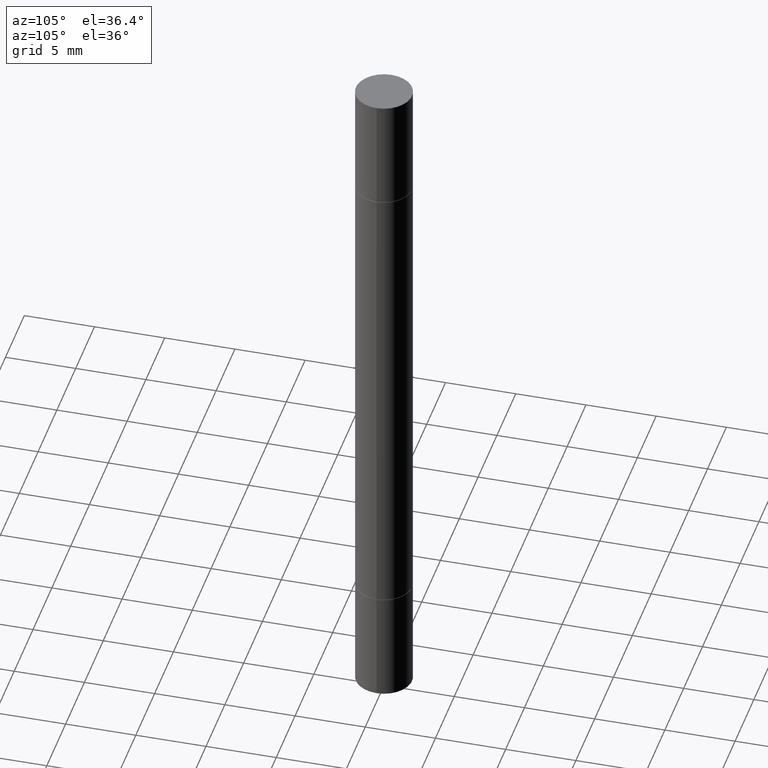
[diagram: clean part render]
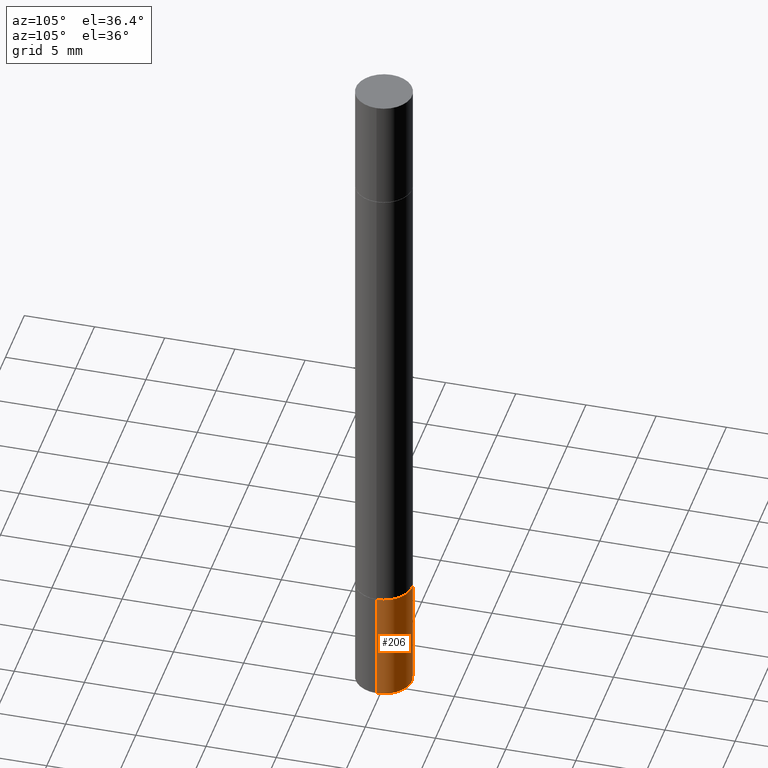
[diagram: same view with one face highlighted and labeled with its STEP entity id]
A machine part, auxiliary view. The second image highlights one B-rep face of the part: STEP entity #206.
In plain terms, the highlighted cylindrical surface (edge-blend (fillet) strip) has radius 2.0002 mm, axis along (-0, 0, 1).
Its self-contained STEP definition (entity closure, byte-faithful):
#7 = EDGE_LOOP ( 'NONE', ( #641, #482, #228, #589 ) ) ;
#40 = EDGE_CURVE ( 'NONE', #195, #324, #334, .T. ) ;
#74 = FACE_OUTER_BOUND ( 'NONE', #7, .T. ) ;
#107 = VERTEX_POINT ( 'NONE', #665 ) ;
#136 = LINE ( 'NONE', #510, #160 ) ;
#160 = VECTOR ( 'NONE', #287, 39.37007874015748143 ) ;
#195 = VERTEX_POINT ( 'NONE', #395 ) ;
#206 = ADVANCED_FACE ( 'NONE', ( #74 ), #494, .T. ) ;
#216 = DIRECTION ( 'NONE',  ( -2.445468806185136877E-29, 3.491481338843145188E-15, 1.000000000000000000 ) ) ;
#228 = ORIENTED_EDGE ( 'NONE', *, *, #40, .F. ) ;
#259 = CARTESIAN_POINT ( 'NONE',  ( -0.07875000000000000056, -5.763520300233858771E-15, -1.653499999999999970 ) ) ;
#287 = DIRECTION ( 'NONE',  ( -2.445468806185136877E-29, 3.491481338843145188E-15, 1.000000000000000000 ) ) ;
#288 = CARTESIAN_POINT ( 'NONE',  ( 0.000000000000000000, 0.000000000000000000, 0.000000000000000000 ) ) ;
#324 = VERTEX_POINT ( 'NONE', #259 ) ;
#331 = CARTESIAN_POINT ( 'NONE',  ( -0.07875000000000000056, -5.763520300233858771E-15, -1.968500000000000139 ) ) ;
#334 = CIRCLE ( 'NONE', #499, 0.07875000000000000056 ) ;
#368 = VECTOR ( 'NONE', #216, 39.37007874015748143 ) ;
#380 = CIRCLE ( 'NONE', #475, 0.07875000000000000056 ) ;
#386 = DIRECTION ( 'NONE',  ( -2.445468806185136597E-29, 3.491481338843145583E-15, 1.000000000000000000 ) ) ;
#395 = CARTESIAN_POINT ( 'NONE',  ( 0.07875000000000000056, -6.323072704644934417E-15, -1.653499999999999970 ) ) ;
#416 = DIRECTION ( 'NONE',  ( -2.445468806185136597E-29, 3.491481338843145583E-15, 1.000000000000000000 ) ) ;
#437 = VERTEX_POINT ( 'NONE', #331 ) ;
#444 = EDGE_CURVE ( 'NONE', #107, #195, #531, .T. ) ;
#464 = DIRECTION ( 'NONE',  ( 1.000000000000000000, -6.982962677686261977E-15, 0.000000000000000000 ) ) ;
#474 = CARTESIAN_POINT ( 'NONE',  ( 0.07875000000000000056, -5.499083108677934443E-16, 3.839989210939299016E-30 ) ) ;
#475 = AXIS2_PLACEMENT_3D ( 'NONE', #553, #416, #464 ) ;
#482 = ORIENTED_EDGE ( 'NONE', *, *, #519, .T. ) ;
#494 = CYLINDRICAL_SURFACE ( 'NONE', #597, 0.07875000000000000056 ) ;
#499 = AXIS2_PLACEMENT_3D ( 'NONE', #643, #386, #606 ) ;
#510 = CARTESIAN_POINT ( 'NONE',  ( -0.07875000000000000056, 5.595524044110789003E-16, -3.873661383575737792E-30 ) ) ;
#519 = EDGE_CURVE ( 'NONE', #437, #324, #136, .T. ) ;
#522 = DIRECTION ( 'NONE',  ( -2.445468806185136597E-29, 3.491481338843145583E-15, 1.000000000000000000 ) ) ;
#531 = LINE ( 'NONE', #474, #368 ) ;
#553 = CARTESIAN_POINT ( 'NONE',  ( 4.813905344975441835E-29, -6.872981015512731707E-15, -1.968500000000000139 ) ) ;
#589 = ORIENTED_EDGE ( 'NONE', *, *, #444, .F. ) ;
#597 = AXIS2_PLACEMENT_3D ( 'NONE', #288, #522, #616 ) ;
#606 = DIRECTION ( 'NONE',  ( 1.000000000000000000, -6.982962677686261977E-15, 0.000000000000000000 ) ) ;
#616 = DIRECTION ( 'NONE',  ( 1.000000000000000000, -6.982962677686265922E-15, 4.876176775795935232E-29 ) ) ;
#628 = EDGE_CURVE ( 'NONE', #107, #437, #380, .T. ) ;
#641 = ORIENTED_EDGE ( 'NONE', *, *, #628, .T. ) ;
#643 = CARTESIAN_POINT ( 'NONE',  ( 4.043582671027123201E-29, -5.773164393777141072E-15, -1.653499999999999970 ) ) ;
#665 = CARTESIAN_POINT ( 'NONE',  ( 0.07875000000000000056, -7.422889326380525053E-15, -1.968500000000000139 ) ) ;